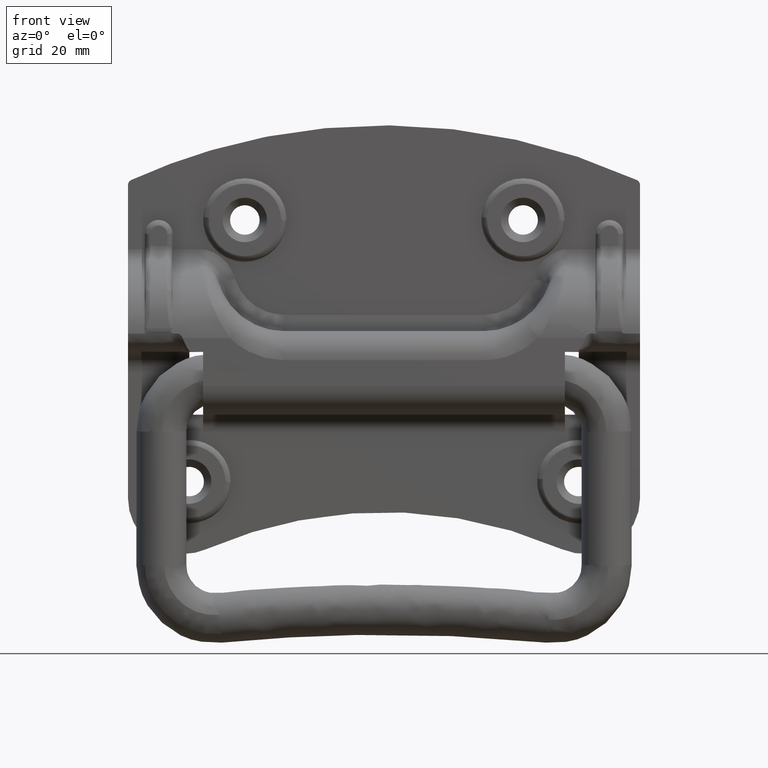
[diagram: clean part render]
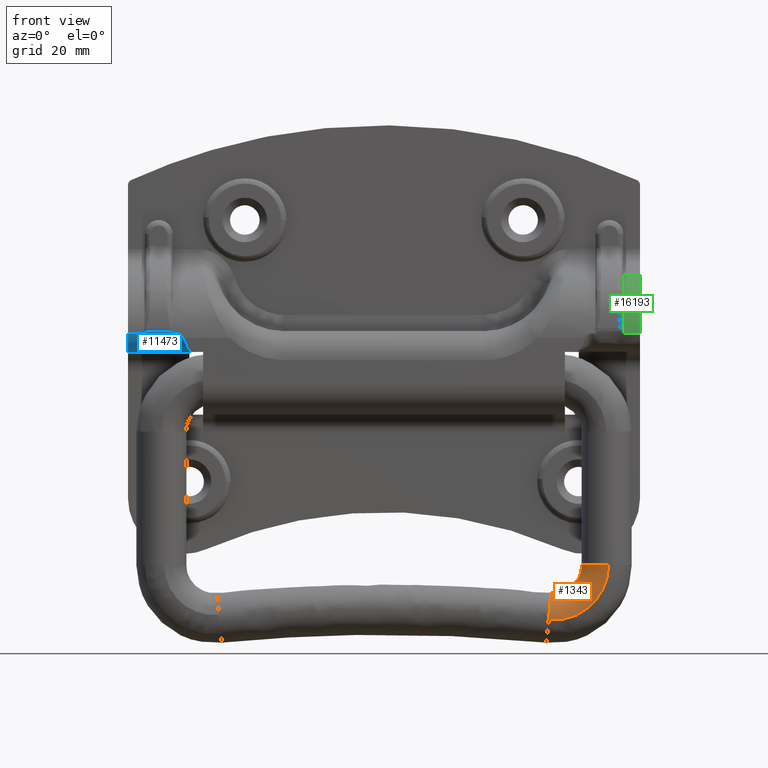
[diagram: same view with three faces highlighted in distinct colors, each labeled with its STEP entity id]
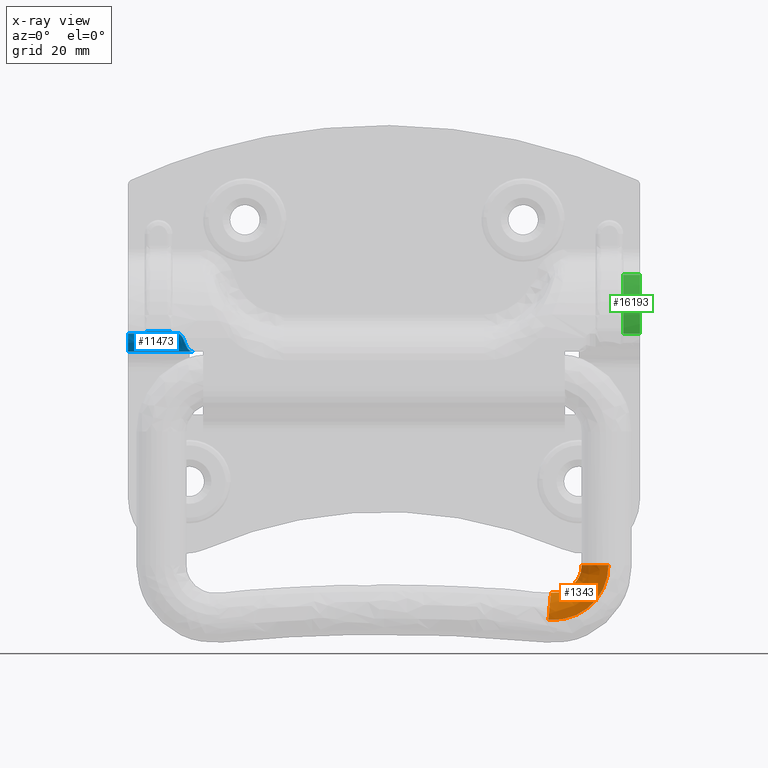
[diagram: x-ray of the same camera — body ghosted, the three highlighted faces saturated]
A machine part, front view with three faces highlighted in distinct colors.
The next image is the same camera in x-ray (body ghosted, the three faces saturated) — at least one of them is partly hidden behind the body in this view.
Their STEP definitions:

[orange] entity #1343 — the highlighted face is a freeform B-spline surface patch.
#493=CARTESIAN_POINT('',(36.667505024073357,-3.023983669834178,-33.500200370223808));
#494=VERTEX_POINT('',#493);
#495=CARTESIAN_POINT('',(35.500000000000007,-9.860761E-032,-33.500200369645597));
#496=VERTEX_POINT('',#495);
#497=CARTESIAN_POINT('',(36.667505024073357,-3.023983669834178,-33.500200370223808));
#498=CARTESIAN_POINT('',(36.365574812844592,-2.691558080097809,-33.500200372306253));
#499=CARTESIAN_POINT('',(35.901372767282368,-1.993487562393541,-33.500200374579371));
#500=CARTESIAN_POINT('',(35.560569551117950,-0.932648745689794,-33.500200373526582));
#501=CARTESIAN_POINT('',(35.499982229038316,-0.276334088226278,-33.500200371017542));
#502=CARTESIAN_POINT('',(35.500000000000007,-9.860761E-032,-33.500200369645597));
#503=B_SPLINE_CURVE_WITH_KNOTS('',3,(#497,#498,#499,#500,#501,#502),.UNSPECIFIED.,.F.,.U.,(4,1,1,4),(0.000000035876348,1.347189509673544,2.487096771987634,3.316129017358023),.UNSPECIFIED.);
#504=EDGE_CURVE('',#494,#496,#503,.T.);
#555=CARTESIAN_POINT('',(39.661026024894973,4.487214798089143,-33.500200271102770));
#556=VERTEX_POINT('',#555);
#567=CARTESIAN_POINT('',(35.500000000000007,-9.860761E-032,-33.500200369645597));
#568=CARTESIAN_POINT('',(35.499750083449811,0.490710454175538,-33.500200369651523));
#569=CARTESIAN_POINT('',(35.627372252612410,1.261585321760170,-33.500200366629073));
#570=CARTESIAN_POINT('',(36.058711201429631,2.225565982916163,-33.500200356414048));
#571=CARTESIAN_POINT('',(36.621217228849638,3.034983133779693,-33.500200343092501));
#572=CARTESIAN_POINT('',(37.359946694567611,3.695505311386452,-33.500200325597717));
#573=CARTESIAN_POINT('',(38.412626196460792,4.265162736461645,-33.500200300667863));
#574=CARTESIAN_POINT('',(39.171690068666912,4.450507946981871,-33.500200282691360));
#575=CARTESIAN_POINT('',(39.661026024894973,4.487214798089143,-33.500200271102770));
#576=B_SPLINE_CURVE_WITH_KNOTS('',3,(#567,#568,#569,#570,#571,#572,#573,#574,#575),.UNSPECIFIED.,.F.,.U.,(4,1,1,1,1,1,4),(0.000000054812300,1.472057544391119,2.313262864525970,3.154430055066475,4.416177309947267,5.257383846313440,6.729441150040749),.UNSPECIFIED.);
#577=EDGE_CURVE('',#496,#556,#576,.T.);
#604=CARTESIAN_POINT('',(40.338973975446613,-4.487214798063340,-33.500200332100292));
#605=VERTEX_POINT('',#604);
#606=CARTESIAN_POINT('',(40.338973975446613,-4.487214798063340,-33.500200332100292));
#607=CARTESIAN_POINT('',(39.871448057401622,-4.522767439269874,-33.500200338056352));
#608=CARTESIAN_POINT('',(38.925345617967359,-4.445762683306458,-33.500200349370083));
#609=CARTESIAN_POINT('',(37.650207600590171,-3.916471698483664,-33.500200362505609));
#610=CARTESIAN_POINT('',(36.953832231996152,-3.339728899062834,-33.500200368251960));
#611=CARTESIAN_POINT('',(36.667505024073357,-3.023983669834178,-33.500200370223808));
#612=B_SPLINE_CURVE_WITH_KNOTS('',3,(#606,#607,#608,#609,#610,#611),.UNSPECIFIED.,.F.,.U.,(4,1,1,4),(0.000000074211079,1.406578934435482,2.813148143808784,4.091857488038717),.UNSPECIFIED.);
#613=EDGE_CURVE('',#605,#494,#612,.T.);
#1206=CARTESIAN_POINT('',(29.544303685232371,-4.487213007524980,-43.292646916398454));
#1207=VERTEX_POINT('',#1206);
#1235=CARTESIAN_POINT('',(29.610155147051199,4.487214798095528,-42.617906987432683));
#1236=VERTEX_POINT('',#1235);
#1244=CARTESIAN_POINT('',(39.661026024894973,4.487214798089143,-33.500200271102770));
#1245=CARTESIAN_POINT('',(39.661668172482422,4.487214798089468,-34.495186734534379));
#1246=CARTESIAN_POINT('',(39.438399485249668,4.487214798089950,-35.847800960120850));
#1247=CARTESIAN_POINT('',(38.690725910621573,4.487214798090811,-37.695490319354953));
#1248=CARTESIAN_POINT('',(37.733137307044800,4.487214798091639,-39.267348359417717));
#1249=CARTESIAN_POINT('',(36.394115920037592,4.487214798092526,-40.598187781684288));
#1250=CARTESIAN_POINT('',(34.793202704475412,4.487214798093397,-41.647743733079842));
#1251=CARTESIAN_POINT('',(33.320840899740922,4.487214798094117,-42.278007122621013));
#1252=CARTESIAN_POINT('',(31.484538042750540,4.487214798094899,-42.667331288946507));
#1253=CARTESIAN_POINT('',(30.283465925878101,4.487214798095272,-42.683744122257892));
#1254=CARTESIAN_POINT('',(29.610155147051199,4.487214798095528,-42.617906987432683));
#1255=B_SPLINE_CURVE_WITH_KNOTS('',3,(#1244,#1245,#1246,#1247,#1248,#1249,#1250,#1251,#1252,#1253,#1254),.UNSPECIFIED.,.F.,.U.,(4,1,1,1,1,1,1,1,4),(0.000000166935795,2.984655684953347,4.059140732672244,5.969338217598816,8.476384625328880,9.670285909996810,11.699872389308361,13.251912516895590,15.281465567066251),.UNSPECIFIED.);
#1256=EDGE_CURVE('',#556,#1236,#1255,.T.);
#1261=CARTESIAN_POINT('',(40.338973975446613,-4.487214798063340,-33.500200332100292));
#1262=CARTESIAN_POINT('',(40.339207851389929,-4.487214731051575,-34.312288452207703));
#1263=CARTESIAN_POINT('',(40.173929792212583,-4.487214606656986,-35.637103185791730));
#1264=CARTESIAN_POINT('',(39.542762535024849,-4.487214395003573,-37.505465310708310));
#1265=CARTESIAN_POINT('',(38.737250950776563,-4.487214200499500,-38.973879079604671));
#1266=CARTESIAN_POINT('',(37.500889551819903,-4.487213961178128,-40.510297661159882));
#1267=CARTESIAN_POINT('',(36.007622419866109,-4.487213723330606,-41.745661396548947));
#1268=CARTESIAN_POINT('',(34.367269620323810,-4.487213504264887,-42.591350178063067));
#1269=CARTESIAN_POINT('',(32.944140055217780,-4.487213335878550,-43.062524587815069));
#1270=CARTESIAN_POINT('',(31.385129137514362,-4.487213170216565,-43.350908003161983));
#1271=CARTESIAN_POINT('',(30.224906511521919,-4.487213063962253,-43.359183619773269));
#1272=CARTESIAN_POINT('',(29.544303685232371,-4.487213007524980,-43.292646916398454));
#1273=B_SPLINE_CURVE_WITH_KNOTS('',3,(#1261,#1262,#1263,#1264,#1265,#1266,#1267,#1268,#1269,#1270,#1271,#1272),.UNSPECIFIED.,.F.,.U.,(4,1,1,1,1,1,1,1,1,4),(0.000000148129118,2.436198432890777,3.974862674436469,5.898216726248553,7.436861838171936,9.873009023699268,11.668139335191540,12.950375897544960,14.360814928161970,16.412343442919010),.UNSPECIFIED.);
#1274=EDGE_CURVE('',#605,#1207,#1273,.T.);
#1279=CARTESIAN_POINT('',(39.699724709670804,4.491989993133970,-32.828151561529204));
#1280=CARTESIAN_POINT('',(40.558556088619426,4.491989993133969,-44.584756383871138));
#1281=CARTESIAN_POINT('',(28.940346690399412,4.491989993133971,-42.591628524125895));
#1282=CARTESIAN_POINT('',(39.668296140133997,4.489609507811512,-32.830447449000246));
#1283=CARTESIAN_POINT('',(40.524193535451005,4.489609507811513,-44.546888757341904));
#1284=CARTESIAN_POINT('',(28.945674857713229,4.489609507811513,-42.560569922813464));
#1285=CARTESIAN_POINT('',(35.161393240712755,4.148244426297064,-33.159681074727111));
#1286=CARTESIAN_POINT('',(35.596553086369305,4.148244426297067,-39.116615655061622));
#1287=CARTESIAN_POINT('',(29.709741853733416,4.148244426297066,-38.106721008591776));
#1288=CARTESIAN_POINT('',(35.499463020570822,-0.338970624875696,-33.134984749588718));
#1289=CARTESIAN_POINT('',(35.966183042686900,-0.338970624875695,-39.523948866631969));
#1290=CARTESIAN_POINT('',(29.652428002757265,-0.338970624875695,-38.440811126696012));
#1291=CARTESIAN_POINT('',(35.837532800428875,-4.826185676048457,-33.110288424450303));
#1292=CARTESIAN_POINT('',(36.335812999004510,-4.826185676048456,-39.931282078202351));
#1293=CARTESIAN_POINT('',(29.595114151781136,-4.826185676048457,-38.774901244800247));
#1294=CARTESIAN_POINT('',(40.344401904220213,-4.484823154306922,-32.781057267526961));
#1295=CARTESIAN_POINT('',(41.263416497498000,-4.484823154306922,-45.361514460834520));
#1296=CARTESIAN_POINT('',(28.831052885222189,-4.484823154306924,-43.228716761224590));
#1297=CARTESIAN_POINT('',(40.375797071727689,-4.482445198944999,-32.778763820106533));
#1298=CARTESIAN_POINT('',(41.297742530423051,-4.482445198944999,-45.399341841956783));
#1299=CARTESIAN_POINT('',(28.825730380641478,-4.482445198944999,-43.259742353706947));
#1307=(BOUNDED_SURFACE()B_SPLINE_SURFACE(2,2,((#1279,#1282,#1285,#1288,#1291,#1294,#1297),(#1280,#1283,#1286,#1289,#1292,#1295,#1298),(#1281,#1284,#1287,#1290,#1293,#1296,#1299)),.UNSPECIFIED.,.F.,.F.,.U.)B_SPLINE_SURFACE_WITH_KNOTS((3,3),(3,1,2,1,3),(0.0,19.299596950342590),(0.0,0.074701500237031,7.530545622952753,14.986389745668470,15.061011152821409),.UNSPECIFIED.)GEOMETRIC_REPRESENTATION_ITEM()RATIONAL_B_SPLINE_SURFACE(((0.921166871618907,0.918479432323847,0.647562728426999,0.915791993028787,0.647562728426999,0.918476550918510,0.921161108808233),(0.568928591176741,0.567268782189771,0.399945940451661,0.565608973202802,0.399945940451661,0.567267002584002,0.568925031965203),(0.925220887276862,0.922521620677415,0.650412624055504,0.919822354077967,0.650412624055504,0.922518726591137,0.925215099104307)))REPRESENTATION_ITEM('')SURFACE());
#1308=CARTESIAN_POINT('',(30.014331210191429,-9.860761E-032,-38.476557051657991));
#1309=VERTEX_POINT('',#1308);
#1310=CARTESIAN_POINT('',(29.544303685232371,-4.487213007524980,-43.292646916398454));
#1311=CARTESIAN_POINT('',(29.587280580523512,-4.520831471569328,-42.852288464378532));
#1312=CARTESIAN_POINT('',(29.651514734801811,-4.472498749085325,-42.194119639417977));
#1313=CARTESIAN_POINT('',(29.739690848933790,-4.200433106055921,-41.290631925431370));
#1314=CARTESIAN_POINT('',(29.802157329386080,-3.883147704343784,-40.650575397689849));
#1315=CARTESIAN_POINT('',(29.870690746685661,-3.373617614249030,-39.948354612606707));
#1316=CARTESIAN_POINT('',(29.928743211817292,-2.735098539122286,-39.353525855912913));
#1317=CARTESIAN_POINT('',(29.975669023841551,-1.917462055261849,-38.872705238404720));
#1318=CARTESIAN_POINT('',(30.006504071615389,-1.022407360107788,-38.556757025829178));
#1319=CARTESIAN_POINT('',(30.014339750104789,-0.366535663207709,-38.476469542202317));
#1320=CARTESIAN_POINT('',(30.014331210191429,-9.860761E-032,-38.476557051657991));
#1321=B_SPLINE_CURVE_WITH_KNOTS('',3,(#1310,#1311,#1312,#1313,#1314,#1315,#1316,#1317,#1318,#1319,#1320),.UNSPECIFIED.,.F.,.U.,(4,1,1,1,1,1,1,1,4),(0.000000226023258,1.331101281664012,1.967733903434451,2.835862679753609,3.472504798267384,4.572077981251884,5.440203074855903,6.308337975866534,7.407937517439116),.UNSPECIFIED.);
#1322=EDGE_CURVE('',#1207,#1309,#1321,.T.);
#1323=ORIENTED_EDGE('',*,*,#1322,.F.);
#1324=ORIENTED_EDGE('',*,*,#1274,.F.);
#1325=ORIENTED_EDGE('',*,*,#613,.T.);
#1326=ORIENTED_EDGE('',*,*,#504,.T.);
#1327=ORIENTED_EDGE('',*,*,#577,.T.);
#1328=ORIENTED_EDGE('',*,*,#1256,.T.);
#1329=CARTESIAN_POINT('',(30.014331210191429,-9.860761E-032,-38.476557051657991));
#1330=CARTESIAN_POINT('',(30.014343042240160,0.420583135491215,-38.476435815744502));
#1331=CARTESIAN_POINT('',(30.002799293552041,1.261699450588701,-38.594717691510837));
#1332=CARTESIAN_POINT('',(29.957882492154361,2.295591669898915,-39.054953241182979));
#1333=CARTESIAN_POINT('',(29.899606061431928,3.077629116594269,-39.652076907423996));
#1334=CARTESIAN_POINT('',(29.828251311892021,3.734844302719020,-40.383206270030122));
#1335=CARTESIAN_POINT('',(29.731489755347489,4.273722576244163,-41.374663960196898));
#1336=CARTESIAN_POINT('',(29.650893809157122,4.455691772209889,-42.200482327532832));
#1337=CARTESIAN_POINT('',(29.610155147051199,4.487214798095528,-42.617906987432683));
#1338=B_SPLINE_CURVE_WITH_KNOTS('',3,(#1329,#1330,#1331,#1332,#1333,#1334,#1335,#1336,#1337),.UNSPECIFIED.,.F.,.U.,(4,1,1,1,1,1,4),(0.000000054807825,1.261755371633103,2.523558232717827,3.364720600989037,4.205881512292580,5.467685417961368,6.729441150125518),.UNSPECIFIED.);
#1339=EDGE_CURVE('',#1309,#1236,#1338,.T.);
#1340=ORIENTED_EDGE('',*,*,#1339,.F.);
#1341=EDGE_LOOP('',(#1323,#1324,#1325,#1326,#1327,#1328,#1340));
#1342=FACE_OUTER_BOUND('',#1341,.T.);
#1343=ADVANCED_FACE('',(#1342),#1307,.T.);

[blue] entity #11473 — the highlighted face is a freeform B-spline surface patch.
#6555=CARTESIAN_POINT('',(-38.000500000000002,-6.276409067895870,8.082847311534970));
#6556=VERTEX_POINT('',#6555);
#6557=CARTESIAN_POINT('',(-38.341255535357050,-6.300000000000080,8.500000000000000));
#6558=VERTEX_POINT('',#6557);
#6559=CARTESIAN_POINT('',(-38.000500000000002,-6.276409067895870,8.082847311534970));
#6560=CARTESIAN_POINT('',(-38.341255535357050,-6.300000000000080,8.500000000000000));
#6561=QUASI_UNIFORM_CURVE('',1,(#6559,#6560),.UNSPECIFIED.,.F.,.U.);
#6562=EDGE_CURVE('',#6556,#6558,#6561,.T.);
#6825=CARTESIAN_POINT('',(-42.659744464642948,-6.300000000000080,8.500000000000000));
#6826=VERTEX_POINT('',#6825);
#6827=CARTESIAN_POINT('',(-43.000500000000002,-6.276409067895870,8.082847311534970));
#6828=VERTEX_POINT('',#6827);
#6829=CARTESIAN_POINT('',(-42.659744464642948,-6.300000000000080,8.500000000000000));
#6830=CARTESIAN_POINT('',(-43.000500000000002,-6.276409067895870,8.082847311534970));
#6831=QUASI_UNIFORM_CURVE('',1,(#6829,#6830),.UNSPECIFIED.,.F.,.U.);
#6832=EDGE_CURVE('',#6826,#6828,#6831,.T.);
#11339=CARTESIAN_POINT('',(-46.000500000000009,-6.300000000000080,8.500000000000000));
#11340=CARTESIAN_POINT('',(-46.000500000000002,-6.300000000000082,4.800000000000007));
#11341=CARTESIAN_POINT('',(-46.000500000000009,-2.600000000000085,4.800000000000000));
#11342=CARTESIAN_POINT('',(-43.000500000000002,-6.300000000000080,8.500000000000000));
#11343=CARTESIAN_POINT('',(-43.000499999999974,-6.300000000000082,4.800000000000007));
#11344=CARTESIAN_POINT('',(-43.000500000000002,-2.600000000000085,4.800000000000000));
#11345=CARTESIAN_POINT('',(-40.000500000000002,-6.300000000000080,8.500000000000000));
#11346=CARTESIAN_POINT('',(-40.000499999999981,-6.300000000000082,4.800000000000007));
#11347=CARTESIAN_POINT('',(-40.000500000000002,-2.600000000000085,4.800000000000000));
#11348=CARTESIAN_POINT('',(-37.000500000000002,-6.300000000000080,8.500000000000000));
#11349=CARTESIAN_POINT('',(-37.000499999999974,-6.300000000000082,4.800000000000007));
#11350=CARTESIAN_POINT('',(-37.000500000000002,-2.600000000000085,4.800000000000000));
#11351=CARTESIAN_POINT('',(-36.250500000000002,-6.300000000000080,8.500000000000000));
#11352=CARTESIAN_POINT('',(-36.250499999999988,-6.300000000000082,4.800000000000007));
#11353=CARTESIAN_POINT('',(-36.250500000000002,-2.600000000000085,4.800000000000000));
#11354=CARTESIAN_POINT('',(-35.500500000000002,-6.300000000000080,4.933333333333350));
#11355=CARTESIAN_POINT('',(-35.500500000000002,-6.300000000000082,4.800000000000007));
#11356=CARTESIAN_POINT('',(-35.500500000000002,-6.166666666666750,4.800000000000000));
#11357=CARTESIAN_POINT('',(-34.750500000000002,-6.300000000000080,4.900000000000000));
#11358=CARTESIAN_POINT('',(-34.750499999999946,-6.300000000000082,4.800000000000007));
#11359=CARTESIAN_POINT('',(-34.750500000000002,-6.200000000000079,4.800000000000000));
#11360=CARTESIAN_POINT('',(-34.000500000000002,-6.300000000000080,4.866666666666681));
#11361=CARTESIAN_POINT('',(-34.000499999999967,-6.300000000000082,4.800000000000007));
#11362=CARTESIAN_POINT('',(-34.000500000000002,-6.233333333333420,4.800000000000000));
#11363=CARTESIAN_POINT('',(-33.250500000000002,-6.300000000000080,4.833333333333350));
#11364=CARTESIAN_POINT('',(-33.250499999999981,-6.300000000000082,4.800000000000007));
#11365=CARTESIAN_POINT('',(-33.250500000000002,-6.266666666666749,4.800000000000000));
#11366=CARTESIAN_POINT('',(-32.500500000000002,-6.300000000000080,4.800000000000000));
#11367=CARTESIAN_POINT('',(-32.500499999999995,-6.300000000000082,4.800000000000007));
#11368=CARTESIAN_POINT('',(-32.500500000000002,-6.300000000000080,4.800000000000000));
#11376=(BOUNDED_SURFACE()B_SPLINE_SURFACE(2,3,((#11339,#11342,#11345,#11348,#11351,#11354,#11357,#11360,#11363,#11366),(#11340,#11343,#11346,#11349,#11352,#11355,#11358,#11361,#11364,#11367),(#11341,#11344,#11347,#11350,#11353,#11356,#11359,#11362,#11365,#11368)),.UNSPECIFIED.,.F.,.F.,.U.)B_SPLINE_SURFACE_WITH_KNOTS((3,3),(4,3,3,4),(0.0,1.0),(0.666666666666667,0.888888888888889,0.944444444444444,1.0),.UNSPECIFIED.)GEOMETRIC_REPRESENTATION_ITEM()RATIONAL_B_SPLINE_SURFACE(((1.0,1.0,1.0,1.0,1.0,1.0,1.0,1.0,1.0,1.0),(0.707106781186548,0.707106781186548,0.707106781186548,0.707106781186548,0.707106781186548,0.707106781186548,0.707106781186548,0.707106781186548,0.707106781186548,0.707106781186548),(1.0,1.0,1.0,1.0,1.0,1.0,1.0,1.0,1.0,1.0)))REPRESENTATION_ITEM('')SURFACE());
#11377=CARTESIAN_POINT('',(-36.125791755031699,-6.300000000000100,7.300026960092620));
#11378=VERTEX_POINT('',#11377);
#11379=CARTESIAN_POINT('',(-38.000500000000002,-6.276409067895870,8.082847311534970));
#11380=CARTESIAN_POINT('',(-37.815462533204219,-6.276409067895871,8.082847311534971));
#11381=CARTESIAN_POINT('',(-37.537906333010518,-6.276409067895878,8.082847311534986));
#11382=CARTESIAN_POINT('',(-37.214090766117899,-6.276409067895872,8.082847311534980));
#11383=CARTESIAN_POINT('',(-37.075312666021027,-6.276409067895873,8.082847311534991));
#11384=CARTESIAN_POINT('',(-37.017488457647332,-6.276409067895873,8.082847311534987));
#11385=CARTESIAN_POINT('',(-37.005920785503221,-6.276400904065618,8.082982649177154));
#11386=CARTESIAN_POINT('',(-36.982798812474037,-6.276423142942070,8.082613983638417));
#11387=CARTESIAN_POINT('',(-36.971248679156837,-6.276465591743411,8.081910711588897));
#11388=CARTESIAN_POINT('',(-36.936629687229768,-6.276682869747438,8.078299095157837));
#11389=CARTESIAN_POINT('',(-36.913435272918498,-6.276952042748405,8.073817935285705));
#11390=CARTESIAN_POINT('',(-36.846538828204110,-6.278026707024198,8.055652504990734));
#11391=CARTESIAN_POINT('',(-36.804626332876552,-6.279092271090159,8.037362262439345));
#11392=CARTESIAN_POINT('',(-36.724296832807582,-6.281550853705474,7.992729610742754));
#11393=CARTESIAN_POINT('',(-36.685802938138259,-6.282951943265394,7.966187630294547));
#11394=CARTESIAN_POINT('',(-36.577439149234003,-6.287143422563873,7.880845796273713));
#11395=CARTESIAN_POINT('',(-36.512844460966647,-6.289951481506733,7.815725293828688));
#11396=CARTESIAN_POINT('',(-36.391071357713940,-6.294703569679060,7.677470200179685));
#11397=CARTESIAN_POINT('',(-36.334409314579503,-6.296649983186968,7.604483037109052));
#11398=CARTESIAN_POINT('',(-36.226497758935572,-6.299294400757909,7.454782802406195));
#11399=CARTESIAN_POINT('',(-36.175540868139599,-6.300000000000090,7.378031743140282));
#11400=CARTESIAN_POINT('',(-36.125791755031699,-6.300000000000090,7.300026960092620));
#11401=B_SPLINE_CURVE_WITH_KNOTS('',3,(#11379,#11380,#11381,#11382,#11383,#11384,#11385,#11386,#11387,#11388,#11389,#11390,#11391,#11392,#11393,#11394,#11395,#11396,#11397,#11398,#11399,#11400),.UNSPECIFIED.,.F.,.U.,(4,1,1,2,2,2,2,2,2,2,2,4),(0.0,0.249999999999961,0.374999999999941,0.437499999999931,0.453124999999936,0.468749999999940,0.499999999999950,0.562499999999959,0.624999999999968,0.749999999999978,0.874999999999989,1.0),.UNSPECIFIED.);
#11402=EDGE_CURVE('',#6556,#11378,#11401,.T.);
#11403=ORIENTED_EDGE('',*,*,#11402,.F.);
#11404=ORIENTED_EDGE('',*,*,#6562,.T.);
#11405=CARTESIAN_POINT('',(-40.500500000000002,-6.300000000000080,8.500000000000000));
#11406=VERTEX_POINT('',#11405);
#11407=CARTESIAN_POINT('',(-40.500500000000002,-6.300000000000080,8.500000000000000));
#11408=CARTESIAN_POINT('',(-38.341255535357050,-6.300000000000080,8.500000000000000));
#11409=QUASI_UNIFORM_CURVE('',1,(#11407,#11408),.UNSPECIFIED.,.F.,.U.);
#11410=EDGE_CURVE('',#11406,#6558,#11409,.T.);
#11411=ORIENTED_EDGE('',*,*,#11410,.F.);
#11412=CARTESIAN_POINT('',(-42.659744464642948,-6.300000000000080,8.500000000000000));
#11413=CARTESIAN_POINT('',(-40.500500000000002,-6.300000000000080,8.500000000000000));
#11414=QUASI_UNIFORM_CURVE('',1,(#11412,#11413),.UNSPECIFIED.,.F.,.U.);
#11415=EDGE_CURVE('',#6826,#11406,#11414,.T.);
#11416=ORIENTED_EDGE('',*,*,#11415,.F.);
#11417=ORIENTED_EDGE('',*,*,#6832,.T.);
#11418=CARTESIAN_POINT('',(-46.000500000000002,-6.276409067895870,8.082847311534950));
#11419=VERTEX_POINT('',#11418);
#11420=CARTESIAN_POINT('',(-46.000500000000002,-6.276409067895870,8.082847311534950));
#11421=CARTESIAN_POINT('',(-43.000500000000002,-6.276409067895870,8.082847311534970));
#11422=QUASI_UNIFORM_CURVE('',1,(#11420,#11421),.UNSPECIFIED.,.F.,.U.);
#11423=EDGE_CURVE('',#11419,#6828,#11422,.T.);
#11424=ORIENTED_EDGE('',*,*,#11423,.F.);
#11425=CARTESIAN_POINT('',(-46.000500000000002,-2.600000000000045,4.800000000000000));
#11426=VERTEX_POINT('',#11425);
#11427=CARTESIAN_POINT('',(-46.000500000000002,-2.600000000000045,4.800000000000000));
#11428=CARTESIAN_POINT('',(-46.000500000000130,-3.077663565742646,4.799511805286382));
#11429=CARTESIAN_POINT('',(-46.000499999999832,-3.891984550249008,4.960035247768870));
#11430=CARTESIAN_POINT('',(-46.000500000000322,-4.849548039253088,5.513352601123070));
#11431=CARTESIAN_POINT('',(-46.000499999999732,-5.415395289005677,6.067101414808391));
#11432=CARTESIAN_POINT('',(-46.000500000000130,-5.837284381438069,6.665459729258878));
#11433=CARTESIAN_POINT('',(-46.000500000000102,-6.133181343053533,7.307435517878031));
#11434=CARTESIAN_POINT('',(-46.000499999999768,-6.247932054874830,7.831620944872742));
#11435=CARTESIAN_POINT('',(-46.000500000000002,-6.276409067895870,8.082847311534950));
#11436=B_SPLINE_CURVE_WITH_KNOTS('',3,(#11427,#11428,#11429,#11430,#11431,#11432,#11433,#11434,#11435),.UNSPECIFIED.,.F.,.U.,(4,1,1,1,1,1,4),(0.000000142363506,1.432792694634559,2.444200128508789,3.286962698446929,3.792661037416004,4.635494427851660,5.394021461901539),.UNSPECIFIED.);
#11437=EDGE_CURVE('',#11426,#11419,#11436,.T.);
#11438=ORIENTED_EDGE('',*,*,#11437,.F.);
#11439=CARTESIAN_POINT('',(-32.500500000000002,-6.300000000000080,4.800000000000000));
#11440=VERTEX_POINT('',#11439);
#11441=CARTESIAN_POINT('',(-32.500500000000002,-6.300000000000080,4.800000000000000));
#11442=CARTESIAN_POINT('',(-33.250500000000002,-6.266666666666749,4.800000000000000));
#11443=CARTESIAN_POINT('',(-34.000500000000002,-6.233333333333420,4.800000000000000));
#11444=CARTESIAN_POINT('',(-34.750500000000002,-6.200000000000079,4.800000000000000));
#11445=CARTESIAN_POINT('',(-35.500500000000002,-6.166666666666750,4.800000000000000));
#11446=CARTESIAN_POINT('',(-36.250500000000002,-2.600000000000085,4.800000000000000));
#11447=CARTESIAN_POINT('',(-37.000500000000002,-2.600000000000085,4.800000000000000));
#11448=CARTESIAN_POINT('',(-40.000500000000002,-2.600000000000085,4.800000000000000));
#11449=CARTESIAN_POINT('',(-43.000500000000002,-2.600000000000085,4.800000000000000));
#11450=CARTESIAN_POINT('',(-46.000500000000002,-2.600000000000085,4.800000000000000));
#11451=B_SPLINE_CURVE_WITH_KNOTS('',3,(#11441,#11442,#11443,#11444,#11445,#11446,#11447,#11448,#11449,#11450),.UNSPECIFIED.,.F.,.U.,(4,3,3,4),(0.666666666666667,0.722222222222223,0.777777777777778,1.0),.UNSPECIFIED.);
#11452=EDGE_CURVE('',#11440,#11426,#11451,.T.);
#11453=ORIENTED_EDGE('',*,*,#11452,.F.);
#11454=CARTESIAN_POINT('',(-34.313145877515851,-6.300000000000079,4.880562039000711));
#11455=VERTEX_POINT('',#11454);
#11456=CARTESIAN_POINT('',(-34.313145877515851,-6.300000000000079,4.880562039000711));
#11457=CARTESIAN_POINT('',(-32.500500000000002,-6.300000000000080,4.800000000000000));
#11458=QUASI_UNIFORM_CURVE('',1,(#11456,#11457),.UNSPECIFIED.,.F.,.U.);
#11459=EDGE_CURVE('',#11455,#11440,#11458,.T.);
#11460=ORIENTED_EDGE('',*,*,#11459,.F.);
#11461=CARTESIAN_POINT('',(-36.125791755031713,-6.300000000000080,7.300026960092621));
#11462=CARTESIAN_POINT('',(-35.667361170021138,-6.300000000000080,6.260856747405522));
#11463=CARTESIAN_POINT('',(-35.208930585010570,-6.300000000000080,4.920374692667147));
#11464=CARTESIAN_POINT('',(-34.750500000000002,-6.300000000000080,4.900000000000000));
#11465=CARTESIAN_POINT('',(-34.604715292505283,-6.300000000000080,4.893520679666904));
#11466=CARTESIAN_POINT('',(-34.458930585010563,-6.300000000000080,4.887041359333807));
#11467=CARTESIAN_POINT('',(-34.313145877515844,-6.300000000000080,4.880562039000711));
#11468=B_SPLINE_CURVE_WITH_KNOTS('',3,(#11461,#11462,#11463,#11464,#11465,#11466,#11467),.UNSPECIFIED.,.F.,.U.,(4,3,4),(0.910486623332550,0.944444444444444,0.955243311666275),.UNSPECIFIED.);
#11469=EDGE_CURVE('',#11378,#11455,#11468,.T.);
#11470=ORIENTED_EDGE('',*,*,#11469,.F.);
#11471=EDGE_LOOP('',(#11403,#11404,#11411,#11416,#11417,#11424,#11438,#11453,#11460,#11470));
#11472=FACE_OUTER_BOUND('',#11471,.T.);
#11473=ADVANCED_FACE('',(#11472),#11376,.T.);

[green] entity #16193 — the highlighted face is a freeform B-spline surface patch.
#6115=CARTESIAN_POINT('',(43.0,-3.431991293301580,15.445133001910801));
#6116=VERTEX_POINT('',#6115);
#6228=CARTESIAN_POINT('',(43.0,-6.169195138090450,9.139542248898760));
#6229=VERTEX_POINT('',#6228);
#6237=CARTESIAN_POINT('',(43.0,-3.431991293301580,15.445133001910801));
#6238=CARTESIAN_POINT('',(43.000000000000149,-4.136064988653970,14.569900507328549));
#6239=CARTESIAN_POINT('',(42.999999999999623,-5.352698753086410,12.572921214528900));
#6240=CARTESIAN_POINT('',(43.000000000000291,-6.000480986195848,10.323322032388861));
#6241=CARTESIAN_POINT('',(43.0,-6.169195138090450,9.139542248898760));
#6242=B_SPLINE_CURVE_WITH_KNOTS('',3,(#6237,#6238,#6239,#6240,#6241),.UNSPECIFIED.,.F.,.U.,(4,1,4),(0.000000015263004,3.369718155369597,6.956797109650912),.UNSPECIFIED.);
#6243=EDGE_CURVE('',#6116,#6229,#6242,.T.);
#6286=CARTESIAN_POINT('',(43.0,-6.276409067895880,8.082847311534891));
#6287=VERTEX_POINT('',#6286);
#6295=CARTESIAN_POINT('',(43.0,-6.169195138090450,9.139542248898760));
#6296=CARTESIAN_POINT('',(43.000000000000028,-6.219309025732250,8.788969769016566));
#6297=CARTESIAN_POINT('',(43.000000000000007,-6.255085283167703,8.436341866036903));
#6298=CARTESIAN_POINT('',(43.0,-6.276409067895880,8.082847311534891));
#6299=B_SPLINE_CURVE_WITH_KNOTS('',3,(#6295,#6296,#6297,#6298),.UNSPECIFIED.,.F.,.U.,(4,4),(3.772008E-010,1.062420307766619),.UNSPECIFIED.);
#6300=EDGE_CURVE('',#6229,#6287,#6299,.T.);
#11316=CARTESIAN_POINT('',(46.0,-6.276409067895880,8.082847311534870));
#11317=VERTEX_POINT('',#11316);
#11330=CARTESIAN_POINT('',(43.0,-6.276409067895880,8.082847311534891));
#11331=CARTESIAN_POINT('',(46.0,-6.276409067895880,8.082847311534870));
#11332=QUASI_UNIFORM_CURVE('',1,(#11330,#11331),.UNSPECIFIED.,.F.,.U.);
#11333=EDGE_CURVE('',#6287,#11317,#11332,.T.);
#15121=CARTESIAN_POINT('',(43.0,0.394853249421875,18.668629532690350));
#15122=VERTEX_POINT('',#15121);
#15123=CARTESIAN_POINT('',(43.0,0.394853249421875,18.668629532690350));
#15124=CARTESIAN_POINT('',(42.999999999999950,-0.293180181787873,18.287130780674591));
#15125=CARTESIAN_POINT('',(43.000000000000128,-1.686697804362204,17.339414395222800));
#15126=CARTESIAN_POINT('',(42.999999999999943,-2.873452996738158,16.140128841856981));
#15127=CARTESIAN_POINT('',(43.0,-3.431991293301580,15.445133001910801));
#15128=B_SPLINE_CURVE_WITH_KNOTS('',3,(#15123,#15124,#15125,#15126,#15127),.UNSPECIFIED.,.F.,.U.,(4,1,4),(6.754860E-009,2.360165592271580,5.035007237517155),.UNSPECIFIED.);
#15129=EDGE_CURVE('',#15122,#6116,#15128,.T.);
#16155=CARTESIAN_POINT('',(46.075000000000003,0.494301844006768,18.723218738081091));
#16156=CARTESIAN_POINT('',(42.923124999999999,0.494301844006768,18.723218738081091));
#16157=CARTESIAN_POINT('',(46.075000000000003,-6.205976106241629,15.083263870071352));
#16158=CARTESIAN_POINT('',(42.923125000000006,-6.205976106241629,15.083263870071352));
#16159=CARTESIAN_POINT('',(46.074999999999996,-6.299031902758704,7.458676230699157));
#16160=CARTESIAN_POINT('',(42.923124999999999,-6.299031902758704,7.458676230699157));
#16168=(BOUNDED_SURFACE()B_SPLINE_SURFACE(1,2,((#16155,#16157,#16159),(#16156,#16158,#16160)),.UNSPECIFIED.,.F.,.F.,.U.)B_SPLINE_SURFACE_WITH_KNOTS((2,2),(3,3),(0.0,3.151875000000004),(0.0,14.125051832108600),.UNSPECIFIED.)GEOMETRIC_REPRESENTATION_ITEM()RATIONAL_B_SPLINE_SURFACE(((1.0,0.862134369481604,0.998993271081157),(1.0,0.862134369481604,0.998993271081157)))REPRESENTATION_ITEM('')SURFACE());
#16169=ORIENTED_EDGE('',*,*,#15129,.T.);
#16170=ORIENTED_EDGE('',*,*,#6243,.T.);
#16171=ORIENTED_EDGE('',*,*,#6300,.T.);
#16172=ORIENTED_EDGE('',*,*,#11333,.T.);
#16173=CARTESIAN_POINT('',(46.0,0.394853249421875,18.668629532690350));
#16174=VERTEX_POINT('',#16173);
#16175=CARTESIAN_POINT('',(46.0,0.394853249421875,18.668629532690350));
#16176=CARTESIAN_POINT('',(46.000000000000021,-0.526872088210278,18.157683621325550));
#16177=CARTESIAN_POINT('',(45.999999999999993,-2.189490226159029,16.950199881862059));
#16178=CARTESIAN_POINT('',(45.999999999999901,-3.946244666652603,14.895878838500121));
#16179=CARTESIAN_POINT('',(46.000000000000199,-4.994755174112898,13.060710082810081));
#16180=CARTESIAN_POINT('',(45.999999999999822,-5.874522718528690,10.919205759185219));
#16181=CARTESIAN_POINT('',(45.999999999999922,-6.205236501782624,9.270617464898887));
#16182=CARTESIAN_POINT('',(46.0,-6.276409067895880,8.082847311534870));
#16183=B_SPLINE_CURVE_WITH_KNOTS('',3,(#16175,#16176,#16177,#16178,#16179,#16180,#16181,#16182),.UNSPECIFIED.,.F.,.U.,(4,1,1,1,1,4),(0.000000053193808,3.161564354946869,6.119181053930365,8.056874588356276,9.484691904779478,13.054202514639741),.UNSPECIFIED.);
#16184=EDGE_CURVE('',#16174,#11317,#16183,.T.);
#16185=ORIENTED_EDGE('',*,*,#16184,.F.);
#16186=CARTESIAN_POINT('',(46.0,0.394853249421875,18.668629532690350));
#16187=CARTESIAN_POINT('',(43.0,0.394853249421875,18.668629532690350));
#16188=QUASI_UNIFORM_CURVE('',1,(#16186,#16187),.UNSPECIFIED.,.F.,.U.);
#16189=EDGE_CURVE('',#16174,#15122,#16188,.T.);
#16190=ORIENTED_EDGE('',*,*,#16189,.T.);
#16191=EDGE_LOOP('',(#16169,#16170,#16171,#16172,#16185,#16190));
#16192=FACE_OUTER_BOUND('',#16191,.T.);
#16193=ADVANCED_FACE('',(#16192),#16168,.T.);